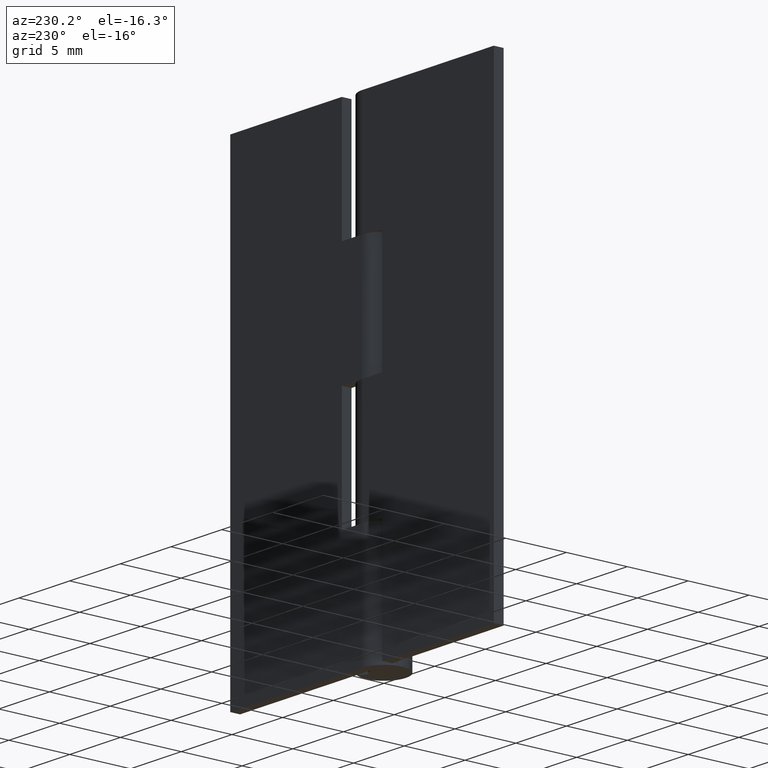
[diagram: clean part render]
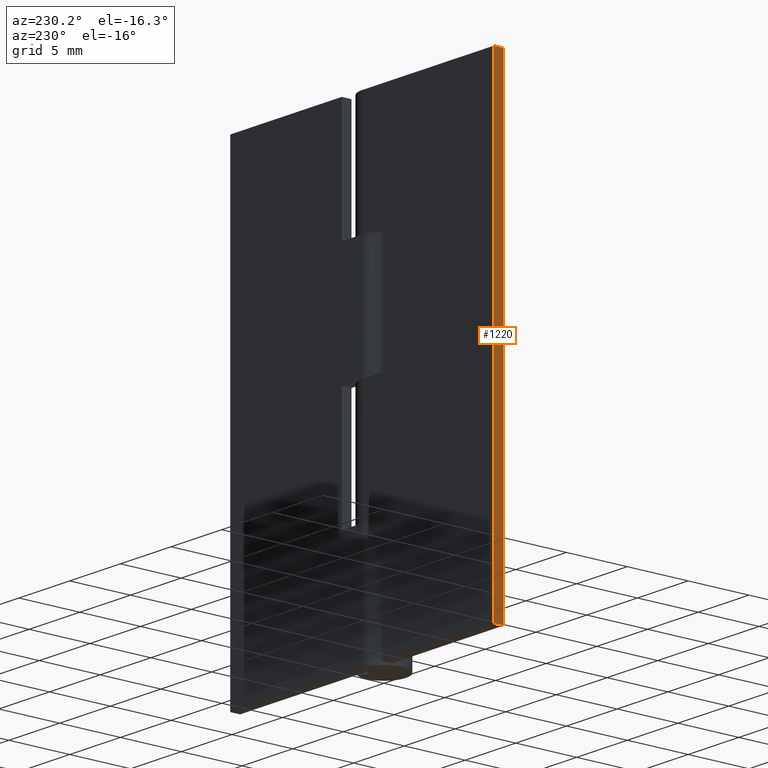
[diagram: same view with one face highlighted and labeled with its STEP entity id]
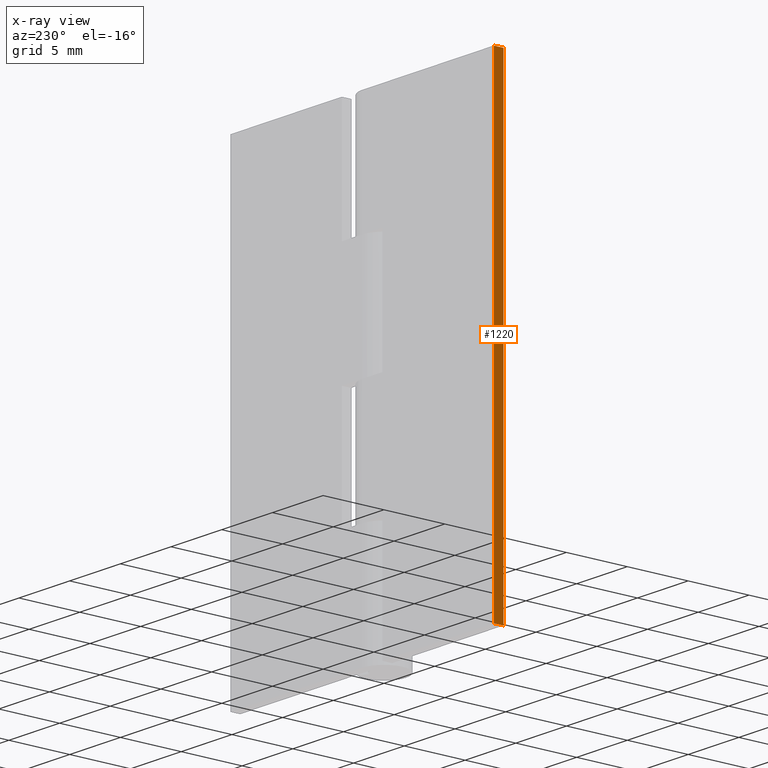
[diagram: x-ray of the same camera — body ghosted, the highlighted face saturated]
A machine part, auxiliary view. The second image highlights one B-rep face of the part: STEP entity #1220.
The next image is the same camera in x-ray: the body ghosted, the highlighted face saturated — about 0% of this face is hidden behind the body in this view.
In plain terms, the highlighted face is a freeform B-spline surface patch.
Its self-contained STEP definition (entity closure, byte-faithful):
#988=CARTESIAN_POINT('',(-13.0,1.800003000000000,0.0));
#989=VERTEX_POINT('',#988);
#996=CARTESIAN_POINT('',(-13.0,1.0,0.0));
#997=VERTEX_POINT('',#996);
#1003=CARTESIAN_POINT('',(-13.0,1.800003000000000,0.0));
#1004=CARTESIAN_POINT('',(-13.0,1.0,0.0));
#1005=QUASI_UNIFORM_CURVE('',1,(#1003,#1004),.UNSPECIFIED.,.F.,.U.);
#1006=EDGE_CURVE('',#989,#997,#1005,.T.);
#1018=CARTESIAN_POINT('',(-13.0,1.800003000000000,37.999984999999903));
#1019=VERTEX_POINT('',#1018);
#1025=CARTESIAN_POINT('',(-13.0,1.0,37.999984999999903));
#1026=VERTEX_POINT('',#1025);
#1027=CARTESIAN_POINT('',(-13.0,1.800003000000000,37.999984999999903));
#1028=CARTESIAN_POINT('',(-13.0,1.0,37.999984999999903));
#1029=QUASI_UNIFORM_CURVE('',1,(#1027,#1028),.UNSPECIFIED.,.F.,.U.);
#1030=EDGE_CURVE('',#1019,#1026,#1029,.T.);
#1194=CARTESIAN_POINT('',(-13.0,1.0,37.999984999999903));
#1195=CARTESIAN_POINT('',(-13.0,1.0,0.0));
#1196=QUASI_UNIFORM_CURVE('',1,(#1194,#1195),.UNSPECIFIED.,.F.,.U.);
#1197=EDGE_CURVE('',#1026,#997,#1196,.T.);
#1205=CARTESIAN_POINT('',(-13.0,0.960039848842388,39.898084177098553));
#1206=CARTESIAN_POINT('',(-13.0,0.960039848842388,-1.898100196337674));
#1207=CARTESIAN_POINT('',(-13.0,1.839963229836038,39.898084177098553));
#1208=CARTESIAN_POINT('',(-13.0,1.839963229836038,-1.898100196337674));
#1209=B_SPLINE_SURFACE_WITH_KNOTS('',1,1,((#1205,#1207),(#1206,#1208)),.UNSPECIFIED.,.F.,.F.,.U.,(2,2),(2,2),(0.0,41.796184373436219),(0.041708331971243,0.958291749985144),.UNSPECIFIED.);
#1210=ORIENTED_EDGE('',*,*,#1006,.T.);
#1211=ORIENTED_EDGE('',*,*,#1197,.F.);
#1212=ORIENTED_EDGE('',*,*,#1030,.F.);
#1213=CARTESIAN_POINT('',(-13.0,1.800003000000000,37.999984999999903));
#1214=CARTESIAN_POINT('',(-13.0,1.800003000000000,0.0));
#1215=QUASI_UNIFORM_CURVE('',1,(#1213,#1214),.UNSPECIFIED.,.F.,.U.);
#1216=EDGE_CURVE('',#1019,#989,#1215,.T.);
#1217=ORIENTED_EDGE('',*,*,#1216,.T.);
#1218=EDGE_LOOP('',(#1210,#1211,#1212,#1217));
#1219=FACE_OUTER_BOUND('',#1218,.T.);
#1220=ADVANCED_FACE('',(#1219),#1209,.F.);